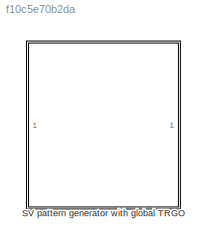
MODEL slx_f10c5e70b2da
KIND library
CONFIG AbsTol = auto
CONFIG EnableMultiTasking = off
CONFIG FixedStep = auto
CONFIG MaxStep = auto
CONFIG MinStep = auto
CONFIG RelTol = 1e-3
CONFIG SampleTimeConstraint = Unconstrained
CONFIG SolverName = VariableStepAuto
CONFIG StartTime = 0.0
CONFIG StopTime = 10.0
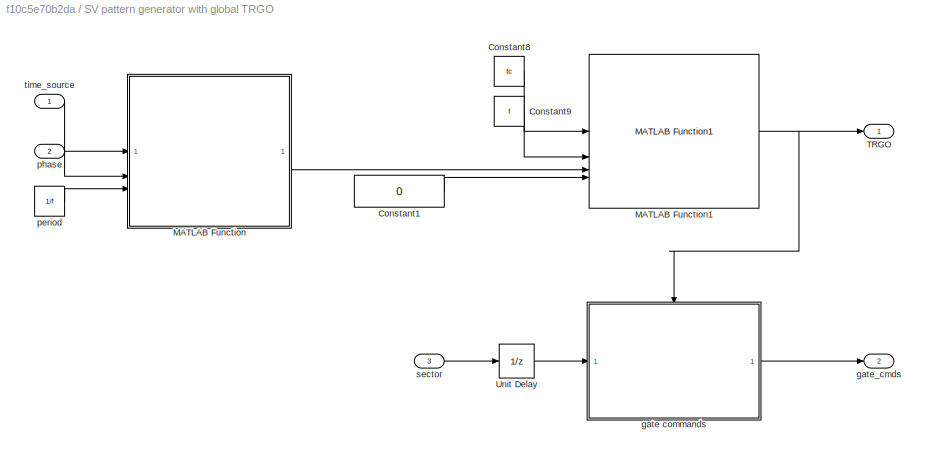
BLOCK [SubSystem] SV pattern generator with global TRGO
BLOCK [Constant] SV pattern generator with global TRGO/Constant1
  Value = 0
BLOCK [Constant] SV pattern generator with global TRGO/Constant8
  Value = tc
BLOCK [Constant] SV pattern generator with global TRGO/Constant9
  Value = f
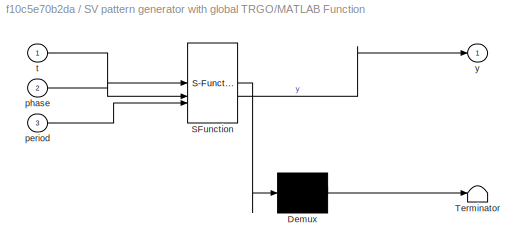
BLOCK [SubSystem] SV pattern generator with global TRGO/MATLAB Function
  ErrorFcn = Stateflow.Translate.translate
  PermitHierarchicalResolution = ExplicitOnly
  SFBlockType = MATLAB Function
  SystemSampleTime = tc
  TreatAsAtomicUnit = on
BLOCK [Demux] SV pattern generator with global TRGO/MATLAB Function/ Demux 
  Outputs = 1
BLOCK [S-Function] SV pattern generator with global TRGO/MATLAB Function/ SFunction 
  EnableBusSupport = off
  FunctionName = sf_sfun
  PortCounts = [3 2]
  SFcnIsStateOwnerBlock = off
  SFunctionDeploymentMode = off
  Tag = Stateflow S-Function 46
BLOCK [Terminator] SV pattern generator with global TRGO/MATLAB Function/ Terminator 
BLOCK [Inport] SV pattern generator with global TRGO/MATLAB Function/period
  Port = 3
BLOCK [Inport] SV pattern generator with global TRGO/MATLAB Function/phase
  Port = 2
BLOCK [Inport] SV pattern generator with global TRGO/MATLAB Function/t
BLOCK [Outport] SV pattern generator with global TRGO/MATLAB Function/y
BLOCK [Reference] SV pattern generator with global TRGO/MATLAB Function1  REF=single_phase_pwm_modulator/Single phase two level PWM generator with global TRGO/MATLAB Function1  (lib defined in slx_75f7217e4d56)
  SourceBlock = single_phase_pwm_modulator/Single phase two level PWM generator with global TRGO/MATLAB Function1
  SourceType = SubSystem
BLOCK [Outport] SV pattern generator with global TRGO/TRGO
BLOCK [UnitDelay] SV pattern generator with global TRGO/Unit Delay
  HasFrameUpgradeWarning = on
  SampleTime = tc
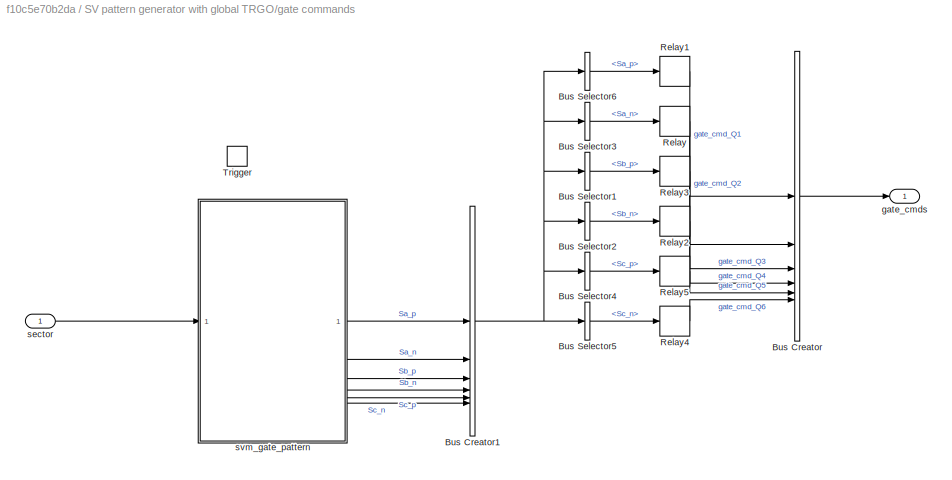
BLOCK [SubSystem] SV pattern generator with global TRGO/gate commands
BLOCK [BusCreator] SV pattern generator with global TRGO/gate commands/Bus Creator
  DisplayOption = bar
  InheritFromInputs = on
  Inputs = 6
BLOCK [BusCreator] SV pattern generator with global TRGO/gate commands/Bus Creator1
  DisplayOption = bar
  InheritFromInputs = on
  Inputs = 6
BLOCK [BusSelector] SV pattern generator with global TRGO/gate commands/Bus Selector1
  OutputSignals = Sb_p
BLOCK [BusSelector] SV pattern generator with global TRGO/gate commands/Bus Selector2
  OutputSignals = Sb_n
BLOCK [BusSelector] SV pattern generator with global TRGO/gate commands/Bus Selector3
  OutputSignals = Sa_n
BLOCK [BusSelector] SV pattern generator with global TRGO/gate commands/Bus Selector4
  OutputSignals = Sc_p
BLOCK [BusSelector] SV pattern generator with global TRGO/gate commands/Bus Selector5
  OutputSignals = Sc_n
BLOCK [BusSelector] SV pattern generator with global TRGO/gate commands/Bus Selector6
  OutputSignals = Sa_p
BLOCK [Relay] SV pattern generator with global TRGO/gate commands/Relay
  OffOutputValue = neg_cmd_gate
  OnOutputValue = pos_cmd_gate
BLOCK [Relay] SV pattern generator with global TRGO/gate commands/Relay1
  OffOutputValue = neg_cmd_gate
  OnOutputValue = pos_cmd_gate
BLOCK [Relay] SV pattern generator with global TRGO/gate commands/Relay2
  OffOutputValue = neg_cmd_gate
  OnOutputValue = pos_cmd_gate
BLOCK [Relay] SV pattern generator with global TRGO/gate commands/Relay3
  OffOutputValue = neg_cmd_gate
  OnOutputValue = pos_cmd_gate
BLOCK [Relay] SV pattern generator with global TRGO/gate commands/Relay4
  OffOutputValue = neg_cmd_gate
  OnOutputValue = pos_cmd_gate
BLOCK [Relay] SV pattern generator with global TRGO/gate commands/Relay5
  OffOutputValue = neg_cmd_gate
  OnOutputValue = pos_cmd_gate
BLOCK [TriggerPort] SV pattern generator with global TRGO/gate commands/Trigger
  PortDimensions = 1
  StatesWhenEnabling = held
  VariantControl = (inherit)
BLOCK [Outport] SV pattern generator with global TRGO/gate commands/gate_cmds
BLOCK [Inport] SV pattern generator with global TRGO/gate commands/sector
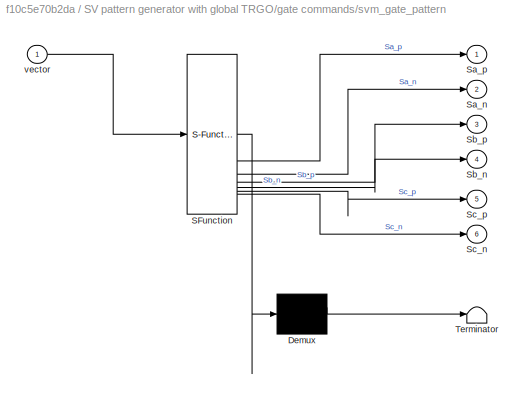
BLOCK [SubSystem] SV pattern generator with global TRGO/gate commands/svm_gate_pattern
  ErrorFcn = Stateflow.Translate.translate
  PermitHierarchicalResolution = ExplicitOnly
  SFBlockType = MATLAB Function
  TreatAsAtomicUnit = on
BLOCK [Demux] SV pattern generator with global TRGO/gate commands/svm_gate_pattern/ Demux 
  Outputs = 1
BLOCK [S-Function] SV pattern generator with global TRGO/gate commands/svm_gate_pattern/ SFunction 
  EnableBusSupport = off
  FunctionName = sf_sfun
  PortCounts = [1 7]
  SFcnIsStateOwnerBlock = off
  SFunctionDeploymentMode = off
  Tag = Stateflow S-Function 4
BLOCK [Terminator] SV pattern generator with global TRGO/gate commands/svm_gate_pattern/ Terminator 
BLOCK [Outport] SV pattern generator with global TRGO/gate commands/svm_gate_pattern/Sa_n
  Port = 2
BLOCK [Outport] SV pattern generator with global TRGO/gate commands/svm_gate_pattern/Sa_p
BLOCK [Outport] SV pattern generator with global TRGO/gate commands/svm_gate_pattern/Sb_n
  Port = 4
BLOCK [Outport] SV pattern generator with global TRGO/gate commands/svm_gate_pattern/Sb_p
  Port = 3
BLOCK [Outport] SV pattern generator with global TRGO/gate commands/svm_gate_pattern/Sc_n
  Port = 6
BLOCK [Outport] SV pattern generator with global TRGO/gate commands/svm_gate_pattern/Sc_p
  Port = 5
BLOCK [Inport] SV pattern generator with global TRGO/gate commands/svm_gate_pattern/vector
BLOCK [Outport] SV pattern generator with global TRGO/gate_cmds
  Port = 2
BLOCK [Constant] SV pattern generator with global TRGO/period
  Value = 1/f
BLOCK [Inport] SV pattern generator with global TRGO/phase
  Port = 2
BLOCK [Inport] SV pattern generator with global TRGO/sector
  Port = 3
BLOCK [Inport] SV pattern generator with global TRGO/time_source
LINE SV pattern generator with global TRGO/Constant1:1 -> SV pattern generator with global TRGO/MATLAB Function1:4
LINE SV pattern generator with global TRGO/Constant8:1 -> SV pattern generator with global TRGO/MATLAB Function1:1
LINE SV pattern generator with global TRGO/Constant9:1 -> SV pattern generator with global TRGO/MATLAB Function1:2
NET SV pattern generator with global TRGO/MATLAB Function1:1 -> SV pattern generator with global TRGO/TRGO:1, SV pattern generator with global TRGO/gate commands:trigger
LINE SV pattern generator with global TRGO/MATLAB Function:1 -> SV pattern generator with global TRGO/MATLAB Function1:3
LINE SV pattern generator with global TRGO/Unit Delay:1 -> SV pattern generator with global TRGO/gate commands:1
NET SV pattern generator with global TRGO/gate commands/Bus Creator1:1 -> SV pattern generator with global TRGO/gate commands/Bus Selector1:1, SV pattern generator with global TRGO/gate commands/Bus Selector2:1, SV pattern generator with global TRGO/gate commands/Bus Selector3:1, SV pattern generator with global TRGO/gate commands/Bus Selector4:1, SV pattern generator with global TRGO/gate commands/Bus Selector5:1, SV pattern generator with global TRGO/gate commands/Bus Selector6:1
LINE SV pattern generator with global TRGO/gate commands/Bus Creator:1 -> SV pattern generator with global TRGO/gate commands/gate_cmds:1
LINE SV pattern generator with global TRGO/gate commands/Bus Selector1:1 -> SV pattern generator with global TRGO/gate commands/Relay3:1
LINE SV pattern generator with global TRGO/gate commands/Bus Selector2:1 -> SV pattern generator with global TRGO/gate commands/Relay2:1
LINE SV pattern generator with global TRGO/gate commands/Bus Selector3:1 -> SV pattern generator with global TRGO/gate commands/Relay:1
LINE SV pattern generator with global TRGO/gate commands/Bus Selector4:1 -> SV pattern generator with global TRGO/gate commands/Relay5:1
LINE SV pattern generator with global TRGO/gate commands/Bus Selector5:1 -> SV pattern generator with global TRGO/gate commands/Relay4:1
LINE SV pattern generator with global TRGO/gate commands/Bus Selector6:1 -> SV pattern generator with global TRGO/gate commands/Relay1:1
LINE SV pattern generator with global TRGO/gate commands/Relay1:1 -> SV pattern generator with global TRGO/gate commands/Bus Creator:1
LINE SV pattern generator with global TRGO/gate commands/Relay2:1 -> SV pattern generator with global TRGO/gate commands/Bus Creator:4
LINE SV pattern generator with global TRGO/gate commands/Relay3:1 -> SV pattern generator with global TRGO/gate commands/Bus Creator:3
LINE SV pattern generator with global TRGO/gate commands/Relay4:1 -> SV pattern generator with global TRGO/gate commands/Bus Creator:6
LINE SV pattern generator with global TRGO/gate commands/Relay5:1 -> SV pattern generator with global TRGO/gate commands/Bus Creator:5
LINE SV pattern generator with global TRGO/gate commands/Relay:1 -> SV pattern generator with global TRGO/gate commands/Bus Creator:2
LINE SV pattern generator with global TRGO/gate commands/sector:1 -> SV pattern generator with global TRGO/gate commands/svm_gate_pattern:1
LINE SV pattern generator with global TRGO/gate commands/svm_gate_pattern:1 -> SV pattern generator with global TRGO/gate commands/Bus Creator1:1
LINE SV pattern generator with global TRGO/gate commands/svm_gate_pattern:2 -> SV pattern generator with global TRGO/gate commands/Bus Creator1:2
LINE SV pattern generator with global TRGO/gate commands/svm_gate_pattern:3 -> SV pattern generator with global TRGO/gate commands/Bus Creator1:3
LINE SV pattern generator with global TRGO/gate commands/svm_gate_pattern:4 -> SV pattern generator with global TRGO/gate commands/Bus Creator1:4
LINE SV pattern generator with global TRGO/gate commands/svm_gate_pattern:5 -> SV pattern generator with global TRGO/gate commands/Bus Creator1:5
LINE SV pattern generator with global TRGO/gate commands/svm_gate_pattern:6 -> SV pattern generator with global TRGO/gate commands/Bus Creator1:6
LINE SV pattern generator with global TRGO/gate commands:1 -> SV pattern generator with global TRGO/gate_cmds:1
LINE SV pattern generator with global TRGO/period:1 -> SV pattern generator with global TRGO/MATLAB Function:3
LINE SV pattern generator with global TRGO/phase:1 -> SV pattern generator with global TRGO/MATLAB Function:2
LINE SV pattern generator with global TRGO/sector:1 -> SV pattern generator with global TRGO/Unit Delay:1
LINE SV pattern generator with global TRGO/time_source:1 -> SV pattern generator with global TRGO/MATLAB Function:1
note: NET lines group one-source signal fan-out (src -> all destinations, sorted); 1:1 wires keep LINE
CHART SV pattern generator with global TRGO/gate commands/svm_gate_pattern states=1 transitions=1
  STATE_LABEL 'eML_blk_kernel()'
  STATE_LABEL 'SCRIPT:\nfunction [Sa_p,Sa_n,Sb_p,Sb_n,Sc_p,Sc_n] = svm_gate_pattern(vector)\n\n% upper = [Sa+ Sb+ Sc+]\n% lower = [Sa− Sb− Sc−]\nswitch vector\n    case 0\n        % u0 [Sa+ Sb+ Sc+] = [0 0 0]\n        upper = [0 0 0];\n    case 1\n        % u1 [Sa+ Sb+ Sc+] = [1 0 0]\n        upper = [1 0 0];\n    case 2\n        % u2 [Sa+ Sb+ Sc+] = [1 1 0]\n        upper = [1 1 0];\n    case 3\n        % u3 [Sa+ Sb+ Sc+] = [0...<+556ch>'
CHART SV pattern generator with global TRGO/MATLAB Function states=1 transitions=1
  STATE_LABEL 'eML_blk_kernel()'
  STATE_LABEL 'SCRIPT:\nfunction y = ramp_up_down(t,phase,period)\nx = sin(2*pi/period*t - phase -pi/2);\ny = asin(x)/pi + 1/2;\n'
CHART  states=0 transitions=0
CHART  states=0 transitions=0
